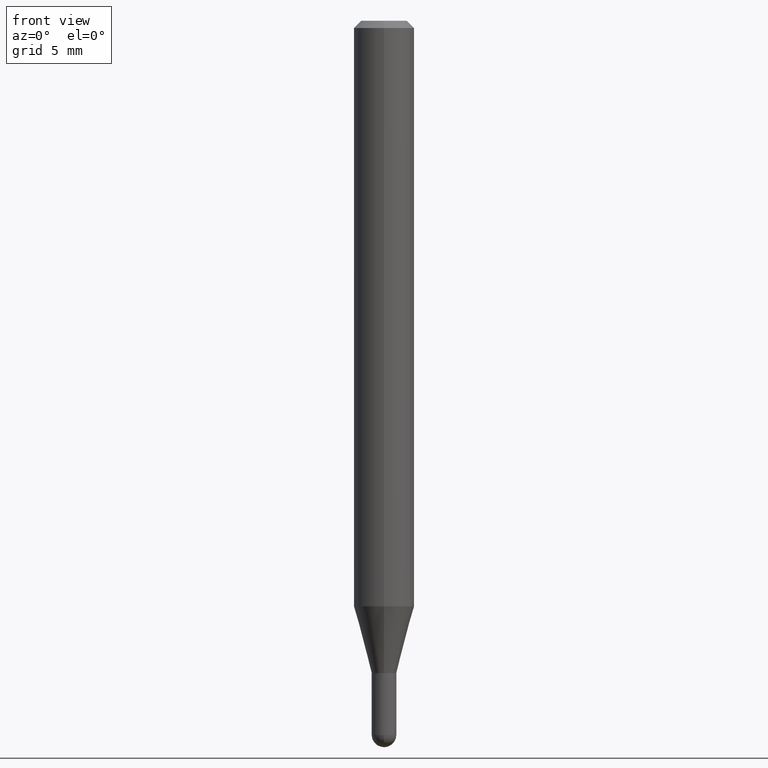
[diagram: clean part render]
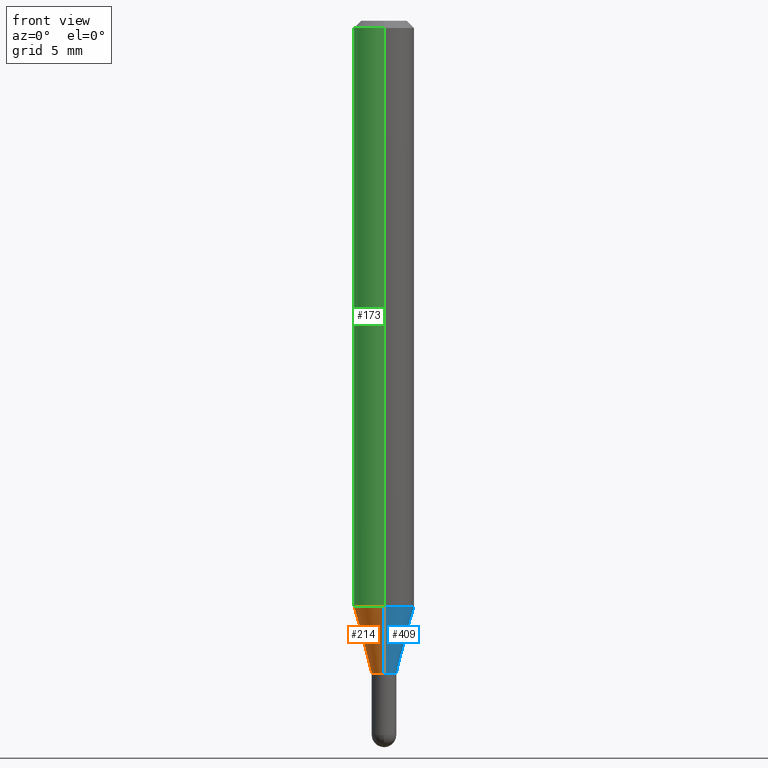
[diagram: same view with three faces highlighted in distinct colors, each labeled with its STEP entity id]
A machine part, front view with three faces highlighted in distinct colors.
Their STEP definitions:

[orange] entity #214 — the highlighted conical surface has half-angle 15 deg.
#8 = CARTESIAN_POINT ( 'NONE',  ( 3.294050965348255594E-29, -4.703018942913569245E-15, -1.347000000000000197 ) ) ;
#22 = CARTESIAN_POINT ( 'NONE',  ( -1.780655482809662962E-16, -0.02550000000000462660, -1.347000000000000197 ) ) ;
#42 = DIRECTION ( 'NONE',  ( -2.445472134631221658E-29, 3.491476572318908216E-15, 1.000000000000000000 ) ) ;
#55 = AXIS2_PLACEMENT_3D ( 'NONE', #8, #42, #112 ) ;
#60 = DIRECTION ( 'NONE',  ( -2.445472134631221658E-29, 3.491476572318908216E-15, 1.000000000000000000 ) ) ;
#64 = EDGE_CURVE ( 'NONE', #260, #307, #443, .T. ) ;
#89 = DIRECTION ( 'NONE',  ( -6.982962677686265922E-15, -1.000000000000000000, 4.370956789862821150E-15 ) ) ;
#94 = CIRCLE ( 'NONE', #196, 0.02549999999999992203 ) ;
#105 = LINE ( 'NONE', #182, #406 ) ;
#112 = DIRECTION ( 'NONE',  ( -6.982962677686265922E-15, -1.000000000000000000, 0.000000000000000000 ) ) ;
#118 = EDGE_CURVE ( 'NONE', #263, #260, #105, .T. ) ;
#119 = EDGE_LOOP ( 'NONE', ( #358, #341, #193, #273 ) ) ;
#138 = EDGE_CURVE ( 'NONE', #437, #307, #373, .T. ) ;
#172 = DIRECTION ( 'NONE',  ( -1.807323732225377865E-15, -0.2588190451025250138, 0.9659258262890670910 ) ) ;
#182 = CARTESIAN_POINT ( 'NONE',  ( 1.811883976188579037E-16, 0.02549999999999521746, -1.347000000000000197 ) ) ;
#193 = ORIENTED_EDGE ( 'NONE', *, *, #138, .T. ) ;
#196 = AXIS2_PLACEMENT_3D ( 'NONE', #342, #379, #426 ) ;
#197 = CARTESIAN_POINT ( 'NONE',  ( 3.126388037344751250E-16, 0.02549999999999521746, -1.347000000000000197 ) ) ;
#214 = ADVANCED_FACE ( 'NONE', ( #484 ), #374, .T. ) ;
#236 = CARTESIAN_POINT ( 'NONE',  ( 4.440892098500919026E-16, 0.06249999999999576727, -1.208914120119956026 ) ) ;
#260 = VERTEX_POINT ( 'NONE', #236 ) ;
#263 = VERTEX_POINT ( 'NONE', #197 ) ;
#264 = AXIS2_PLACEMENT_3D ( 'NONE', #361, #60, #89 ) ;
#271 = CARTESIAN_POINT ( 'NONE',  ( -1.780655482809662962E-16, -0.02550000000000462660, -1.347000000000000197 ) ) ;
#273 = ORIENTED_EDGE ( 'NONE', *, *, #64, .F. ) ;
#284 = CARTESIAN_POINT ( 'NONE',  ( -4.364351673553622350E-16, -0.06250000000000424660, -1.208914120119955582 ) ) ;
#294 = VECTOR ( 'NONE', #172, 39.37007874015748854 ) ;
#307 = VERTEX_POINT ( 'NONE', #284 ) ;
#341 = ORIENTED_EDGE ( 'NONE', *, *, #367, .T. ) ;
#342 = CARTESIAN_POINT ( 'NONE',  ( 3.294050965348255594E-29, -4.703018942913569245E-15, -1.347000000000000197 ) ) ;
#358 = ORIENTED_EDGE ( 'NONE', *, *, #118, .F. ) ;
#361 = CARTESIAN_POINT ( 'NONE',  ( 2.956365793915573525E-29, -4.220895328344351815E-15, -1.208914120119955804 ) ) ;
#367 = EDGE_CURVE ( 'NONE', #263, #437, #94, .T. ) ;
#373 = LINE ( 'NONE', #22, #294 ) ;
#374 = CONICAL_SURFACE ( 'NONE', #55, 0.02549999999999992203, 0.2617993877991573459 ) ;
#379 = DIRECTION ( 'NONE',  ( -2.445472134631221658E-29, 3.491476572318908216E-15, 1.000000000000000000 ) ) ;
#406 = VECTOR ( 'NONE', #418, 39.37007874015748143 ) ;
#418 = DIRECTION ( 'NONE',  ( 1.839019923739648830E-15, 0.2588190451025317862, 0.9659258262890653146 ) ) ;
#426 = DIRECTION ( 'NONE',  ( -6.982962677686265922E-15, -1.000000000000000000, 0.000000000000000000 ) ) ;
#437 = VERTEX_POINT ( 'NONE', #271 ) ;
#443 = CIRCLE ( 'NONE', #264, 0.06250000000000000000 ) ;
#484 = FACE_OUTER_BOUND ( 'NONE', #119, .T. ) ;

[blue] entity #409 — the highlighted conical surface has half-angle 15 deg.
#22 = CARTESIAN_POINT ( 'NONE',  ( -1.780655482809662962E-16, -0.02550000000000462660, -1.347000000000000197 ) ) ;
#32 = CARTESIAN_POINT ( 'NONE',  ( 3.294050965348255594E-29, -4.703018942913569245E-15, -1.347000000000000197 ) ) ;
#39 = AXIS2_PLACEMENT_3D ( 'NONE', #106, #473, #354 ) ;
#81 = ORIENTED_EDGE ( 'NONE', *, *, #415, .F. ) ;
#105 = LINE ( 'NONE', #182, #406 ) ;
#106 = CARTESIAN_POINT ( 'NONE',  ( 2.956365793915573525E-29, -4.220895328344351815E-15, -1.208914120119955804 ) ) ;
#118 = EDGE_CURVE ( 'NONE', #263, #260, #105, .T. ) ;
#138 = EDGE_CURVE ( 'NONE', #437, #307, #373, .T. ) ;
#143 = DIRECTION ( 'NONE',  ( -2.445472134631221658E-29, 3.491476572318908216E-15, 1.000000000000000000 ) ) ;
#172 = DIRECTION ( 'NONE',  ( -1.807323732225377865E-15, -0.2588190451025250138, 0.9659258262890670910 ) ) ;
#178 = CONICAL_SURFACE ( 'NONE', #240, 0.02549999999999992203, 0.2617993877991573459 ) ;
#182 = CARTESIAN_POINT ( 'NONE',  ( 1.811883976188579037E-16, 0.02549999999999521746, -1.347000000000000197 ) ) ;
#188 = CIRCLE ( 'NONE', #39, 0.06250000000000000000 ) ;
#197 = CARTESIAN_POINT ( 'NONE',  ( 3.126388037344751250E-16, 0.02549999999999521746, -1.347000000000000197 ) ) ;
#236 = CARTESIAN_POINT ( 'NONE',  ( 4.440892098500919026E-16, 0.06249999999999576727, -1.208914120119956026 ) ) ;
#240 = AXIS2_PLACEMENT_3D ( 'NONE', #305, #143, #467 ) ;
#251 = ORIENTED_EDGE ( 'NONE', *, *, #118, .T. ) ;
#254 = DIRECTION ( 'NONE',  ( -2.445472134631221658E-29, 3.491476572318908216E-15, 1.000000000000000000 ) ) ;
#260 = VERTEX_POINT ( 'NONE', #236 ) ;
#263 = VERTEX_POINT ( 'NONE', #197 ) ;
#271 = CARTESIAN_POINT ( 'NONE',  ( -1.780655482809662962E-16, -0.02550000000000462660, -1.347000000000000197 ) ) ;
#278 = CIRCLE ( 'NONE', #417, 0.02549999999999992203 ) ;
#284 = CARTESIAN_POINT ( 'NONE',  ( -4.364351673553622350E-16, -0.06250000000000424660, -1.208914120119955582 ) ) ;
#294 = VECTOR ( 'NONE', #172, 39.37007874015748854 ) ;
#299 = DIRECTION ( 'NONE',  ( -6.982962677686265922E-15, -1.000000000000000000, 0.000000000000000000 ) ) ;
#305 = CARTESIAN_POINT ( 'NONE',  ( 3.294050965348255594E-29, -4.703018942913569245E-15, -1.347000000000000197 ) ) ;
#307 = VERTEX_POINT ( 'NONE', #284 ) ;
#338 = FACE_OUTER_BOUND ( 'NONE', #429, .T. ) ;
#354 = DIRECTION ( 'NONE',  ( -6.982962677686265922E-15, -1.000000000000000000, 4.370956789862821150E-15 ) ) ;
#359 = EDGE_CURVE ( 'NONE', #437, #263, #278, .T. ) ;
#373 = LINE ( 'NONE', #22, #294 ) ;
#400 = ORIENTED_EDGE ( 'NONE', *, *, #138, .F. ) ;
#406 = VECTOR ( 'NONE', #418, 39.37007874015748143 ) ;
#409 = ADVANCED_FACE ( 'NONE', ( #338 ), #178, .T. ) ;
#415 = EDGE_CURVE ( 'NONE', #307, #260, #188, .T. ) ;
#417 = AXIS2_PLACEMENT_3D ( 'NONE', #32, #254, #299 ) ;
#418 = DIRECTION ( 'NONE',  ( 1.839019923739648830E-15, 0.2588190451025317862, 0.9659258262890653146 ) ) ;
#429 = EDGE_LOOP ( 'NONE', ( #488, #251, #81, #400 ) ) ;
#437 = VERTEX_POINT ( 'NONE', #271 ) ;
#467 = DIRECTION ( 'NONE',  ( -6.982962677686265922E-15, -1.000000000000000000, 0.000000000000000000 ) ) ;
#473 = DIRECTION ( 'NONE',  ( -2.445472134631221658E-29, 3.491476572318908216E-15, 1.000000000000000000 ) ) ;
#488 = ORIENTED_EDGE ( 'NONE', *, *, #359, .T. ) ;

[green] entity #173 — the highlighted cylindrical surface (edge-blend (fillet) strip) has radius 1.5875 mm, axis along (-0, 0, 1).
#2 = VERTEX_POINT ( 'NONE', #319 ) ;
#23 = CIRCLE ( 'NONE', #470, 0.06250000000000000000 ) ;
#50 = EDGE_CURVE ( 'NONE', #260, #2, #167, .T. ) ;
#60 = DIRECTION ( 'NONE',  ( -2.445472134631221658E-29, 3.491476572318908216E-15, 1.000000000000000000 ) ) ;
#64 = EDGE_CURVE ( 'NONE', #260, #307, #443, .T. ) ;
#89 = DIRECTION ( 'NONE',  ( -6.982962677686265922E-15, -1.000000000000000000, 4.370956789862821150E-15 ) ) ;
#163 = EDGE_LOOP ( 'NONE', ( #165, #350, #398, #453 ) ) ;
#165 = ORIENTED_EDGE ( 'NONE', *, *, #50, .F. ) ;
#167 = LINE ( 'NONE', #499, #204 ) ;
#173 = ADVANCED_FACE ( 'NONE', ( #221 ), #311, .T. ) ;
#179 = CARTESIAN_POINT ( 'NONE',  ( 3.668208201946835097E-31, -5.237214858478365529E-17, -0.01500000000000000812 ) ) ;
#184 = DIRECTION ( 'NONE',  ( -6.982962677686265922E-15, -1.000000000000000000, 3.483106191921935554E-15 ) ) ;
#202 = DIRECTION ( 'NONE',  ( -2.445472134631221658E-29, 3.491476572318908216E-15, 1.000000000000000000 ) ) ;
#204 = VECTOR ( 'NONE', #202, 39.37007874015748143 ) ;
#221 = FACE_OUTER_BOUND ( 'NONE', #163, .T. ) ;
#225 = VERTEX_POINT ( 'NONE', #316 ) ;
#236 = CARTESIAN_POINT ( 'NONE',  ( 4.440892098500919026E-16, 0.06249999999999576727, -1.208914120119956026 ) ) ;
#249 = DIRECTION ( 'NONE',  ( -2.445472134631221658E-29, 3.491476572318908216E-15, 1.000000000000000000 ) ) ;
#260 = VERTEX_POINT ( 'NONE', #236 ) ;
#264 = AXIS2_PLACEMENT_3D ( 'NONE', #361, #60, #89 ) ;
#268 = VECTOR ( 'NONE', #249, 39.37007874015748143 ) ;
#284 = CARTESIAN_POINT ( 'NONE',  ( -4.364351673553622350E-16, -0.06250000000000424660, -1.208914120119955582 ) ) ;
#307 = VERTEX_POINT ( 'NONE', #284 ) ;
#311 = CYLINDRICAL_SURFACE ( 'NONE', #315, 0.06250000000000000000 ) ;
#315 = AXIS2_PLACEMENT_3D ( 'NONE', #439, #510, #471 ) ;
#316 = CARTESIAN_POINT ( 'NONE',  ( -4.364351673553912750E-16, -0.06250000000000005551, -0.01499999999999979128 ) ) ;
#319 = CARTESIAN_POINT ( 'NONE',  ( 4.440892098500922971E-16, 0.06249999999999995143, -0.01500000000000022669 ) ) ;
#343 = LINE ( 'NONE', #360, #268 ) ;
#350 = ORIENTED_EDGE ( 'NONE', *, *, #64, .T. ) ;
#360 = CARTESIAN_POINT ( 'NONE',  ( -4.364351673553916201E-16, -0.06250000000000000000, 2.182172857699317635E-16 ) ) ;
#361 = CARTESIAN_POINT ( 'NONE',  ( 2.956365793915573525E-29, -4.220895328344351815E-15, -1.208914120119955804 ) ) ;
#386 = DIRECTION ( 'NONE',  ( -2.445472134631221658E-29, 3.491476572318908216E-15, 1.000000000000000000 ) ) ;
#394 = EDGE_CURVE ( 'NONE', #2, #225, #23, .T. ) ;
#398 = ORIENTED_EDGE ( 'NONE', *, *, #451, .T. ) ;
#439 = CARTESIAN_POINT ( 'NONE',  ( 0.000000000000000000, 0.000000000000000000, 0.000000000000000000 ) ) ;
#443 = CIRCLE ( 'NONE', #264, 0.06250000000000000000 ) ;
#451 = EDGE_CURVE ( 'NONE', #307, #225, #343, .T. ) ;
#453 = ORIENTED_EDGE ( 'NONE', *, *, #394, .F. ) ;
#470 = AXIS2_PLACEMENT_3D ( 'NONE', #179, #386, #184 ) ;
#471 = DIRECTION ( 'NONE',  ( -6.982962677686265922E-15, -1.000000000000000000, 3.491476572318908216E-15 ) ) ;
#499 = CARTESIAN_POINT ( 'NONE',  ( 4.440892098500625669E-16, 0.06250000000000000000, -2.182172857699317635E-16 ) ) ;
#510 = DIRECTION ( 'NONE',  ( -2.445472134631221658E-29, 3.491476572318908216E-15, 1.000000000000000000 ) ) ;